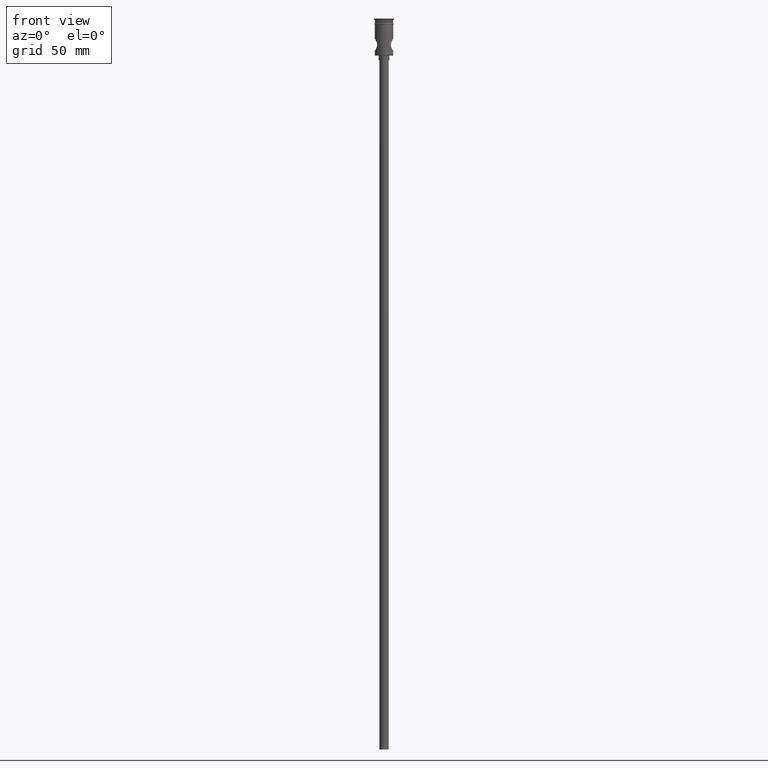
[diagram: clean part render]
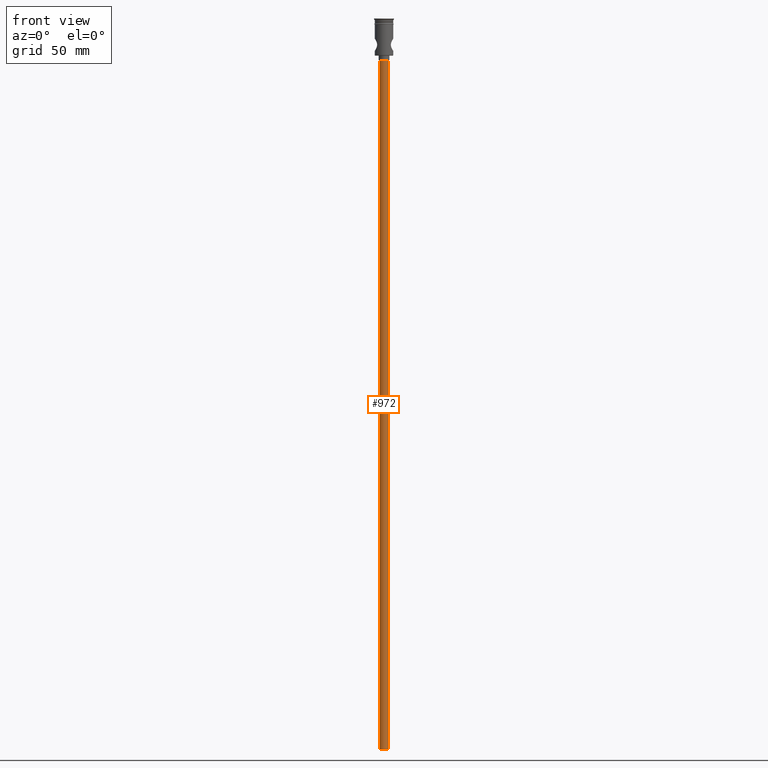
[diagram: same view with one face highlighted and labeled with its STEP entity id]
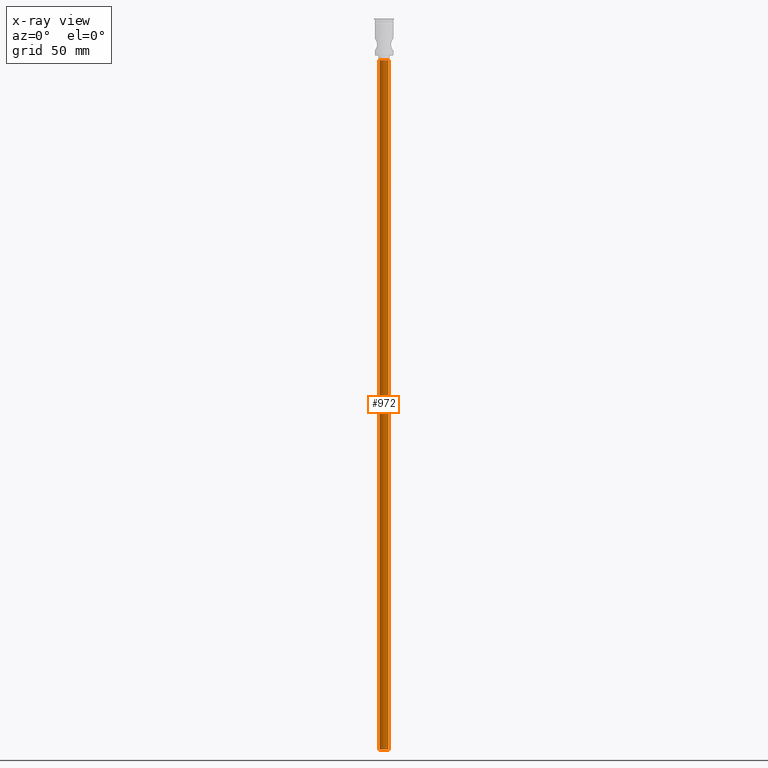
[diagram: x-ray of the same camera — body ghosted, the highlighted face saturated]
A machine part, front view. The second image highlights one B-rep face of the part: STEP entity #972.
The next image is the same camera in x-ray: the body ghosted, the highlighted face saturated — about 0% of this face is hidden behind the body in this view.
In plain terms, the highlighted cylindrical surface (edge-blend (fillet) strip) has radius 3 mm, axis along (-0, -0, 1).
Its self-contained STEP definition (entity closure, byte-faithful):
#15 = EDGE_LOOP ( 'NONE', ( #23, #640, #720, #1400 ) ) ;
#23 = ORIENTED_EDGE ( 'NONE', *, *, #1367, .F. ) ;
#24 = DIRECTION ( 'NONE',  ( 0.000000000000000000, 0.000000000000000000, -1.000000000000000000 ) ) ;
#67 = CARTESIAN_POINT ( 'NONE',  ( 3.000000000000000444, 0.000000000000000000, -474.0000000000000568 ) ) ;
#94 = AXIS2_PLACEMENT_3D ( 'NONE', #748, #1407, #1332 ) ;
#203 = CIRCLE ( 'NONE', #953, 3.000000000000000444 ) ;
#241 = VERTEX_POINT ( 'NONE', #1136 ) ;
#246 = VERTEX_POINT ( 'NONE', #67 ) ;
#247 = VECTOR ( 'NONE', #390, 1000.000000000000000 ) ;
#290 = CARTESIAN_POINT ( 'NONE',  ( 3.000000000000000444, 0.000000000000000000, -474.0000000000000568 ) ) ;
#337 = CARTESIAN_POINT ( 'NONE',  ( -3.000000000000000444, 3.673940397442060361E-16, -27.00000000000000000 ) ) ;
#390 = DIRECTION ( 'NONE',  ( -0.000000000000000000, -0.000000000000000000, 1.000000000000000000 ) ) ;
#468 = AXIS2_PLACEMENT_3D ( 'NONE', #822, #1246, #1128 ) ;
#521 = VECTOR ( 'NONE', #752, 1000.000000000000000 ) ;
#616 = VERTEX_POINT ( 'NONE', #337 ) ;
#639 = CARTESIAN_POINT ( 'NONE',  ( -3.000000000000000444, 3.673940397442060361E-16, -474.0000000000000568 ) ) ;
#640 = ORIENTED_EDGE ( 'NONE', *, *, #1203, .F. ) ;
#689 = CARTESIAN_POINT ( 'NONE',  ( 0.000000000000000000, 0.000000000000000000, -27.00000000000000000 ) ) ;
#720 = ORIENTED_EDGE ( 'NONE', *, *, #1357, .T. ) ;
#734 = FACE_OUTER_BOUND ( 'NONE', #15, .T. ) ;
#748 = CARTESIAN_POINT ( 'NONE',  ( 0.000000000000000000, 0.000000000000000000, -474.0000000000000568 ) ) ;
#752 = DIRECTION ( 'NONE',  ( -0.000000000000000000, -0.000000000000000000, 1.000000000000000000 ) ) ;
#796 = VERTEX_POINT ( 'NONE', #1334 ) ;
#802 = DIRECTION ( 'NONE',  ( -1.000000000000000000, 0.000000000000000000, 0.000000000000000000 ) ) ;
#822 = CARTESIAN_POINT ( 'NONE',  ( 0.000000000000000000, 0.000000000000000000, -474.0000000000000568 ) ) ;
#829 = LINE ( 'NONE', #639, #247 ) ;
#953 = AXIS2_PLACEMENT_3D ( 'NONE', #689, #24, #802 ) ;
#972 = ADVANCED_FACE ( 'NONE', ( #734 ), #1322, .T. ) ;
#1052 = CIRCLE ( 'NONE', #468, 3.000000000000000444 ) ;
#1128 = DIRECTION ( 'NONE',  ( -1.000000000000000000, 0.000000000000000000, 0.000000000000000000 ) ) ;
#1136 = CARTESIAN_POINT ( 'NONE',  ( -3.000000000000000444, 3.673940397442060361E-16, -474.0000000000000568 ) ) ;
#1185 = EDGE_CURVE ( 'NONE', #796, #616, #203, .T. ) ;
#1203 = EDGE_CURVE ( 'NONE', #246, #241, #1052, .T. ) ;
#1246 = DIRECTION ( 'NONE',  ( 0.000000000000000000, 0.000000000000000000, -1.000000000000000000 ) ) ;
#1322 = CYLINDRICAL_SURFACE ( 'NONE', #94, 3.000000000000000444 ) ;
#1332 = DIRECTION ( 'NONE',  ( 1.000000000000000000, 0.000000000000000000, 0.000000000000000000 ) ) ;
#1334 = CARTESIAN_POINT ( 'NONE',  ( 3.000000000000000444, 0.000000000000000000, -27.00000000000000000 ) ) ;
#1357 = EDGE_CURVE ( 'NONE', #246, #796, #1427, .T. ) ;
#1367 = EDGE_CURVE ( 'NONE', #241, #616, #829, .T. ) ;
#1400 = ORIENTED_EDGE ( 'NONE', *, *, #1185, .T. ) ;
#1407 = DIRECTION ( 'NONE',  ( -0.000000000000000000, -0.000000000000000000, 1.000000000000000000 ) ) ;
#1427 = LINE ( 'NONE', #290, #521 ) ;